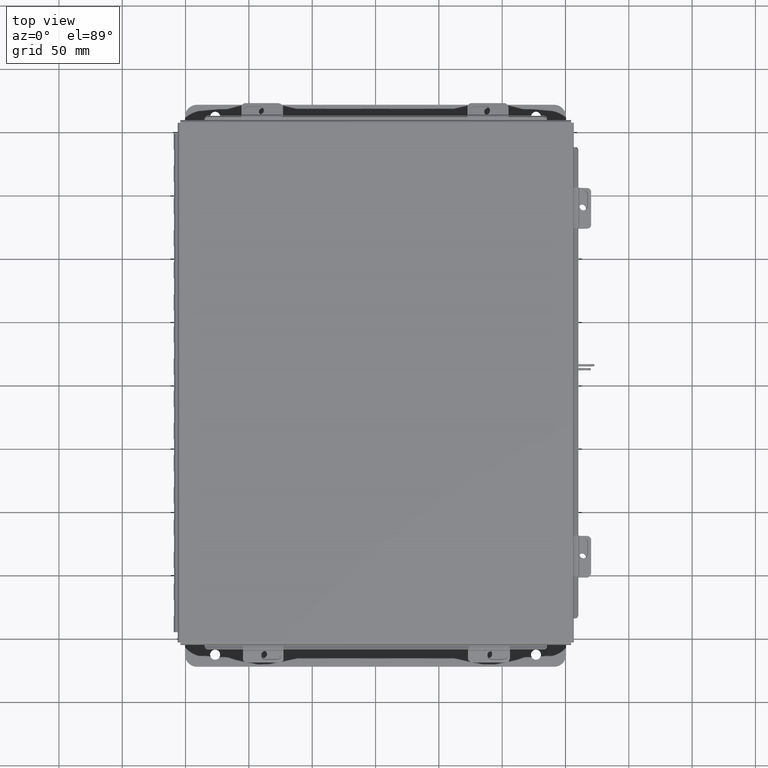
[diagram: clean part render]
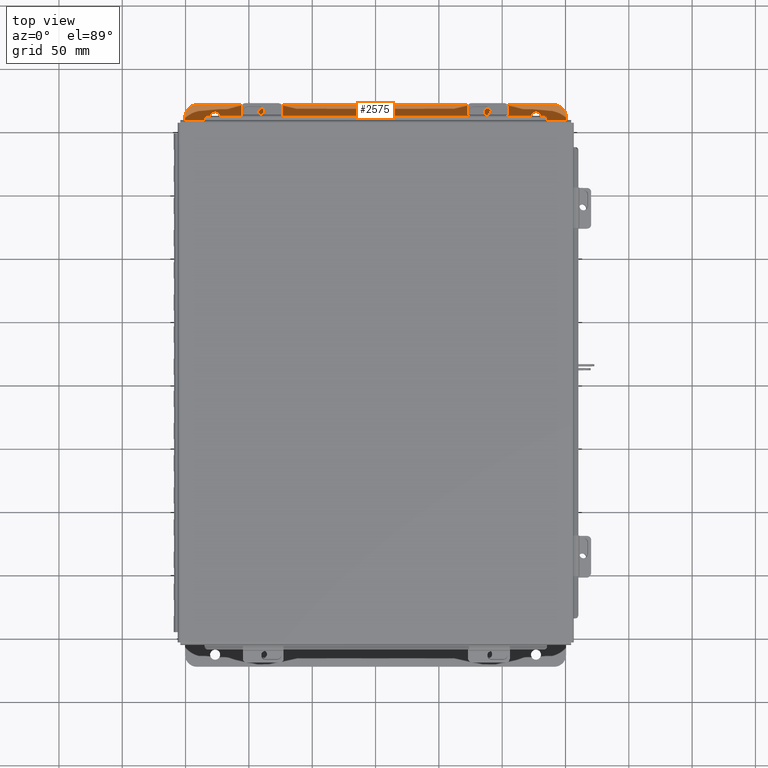
[diagram: same view with one face highlighted and labeled with its STEP entity id]
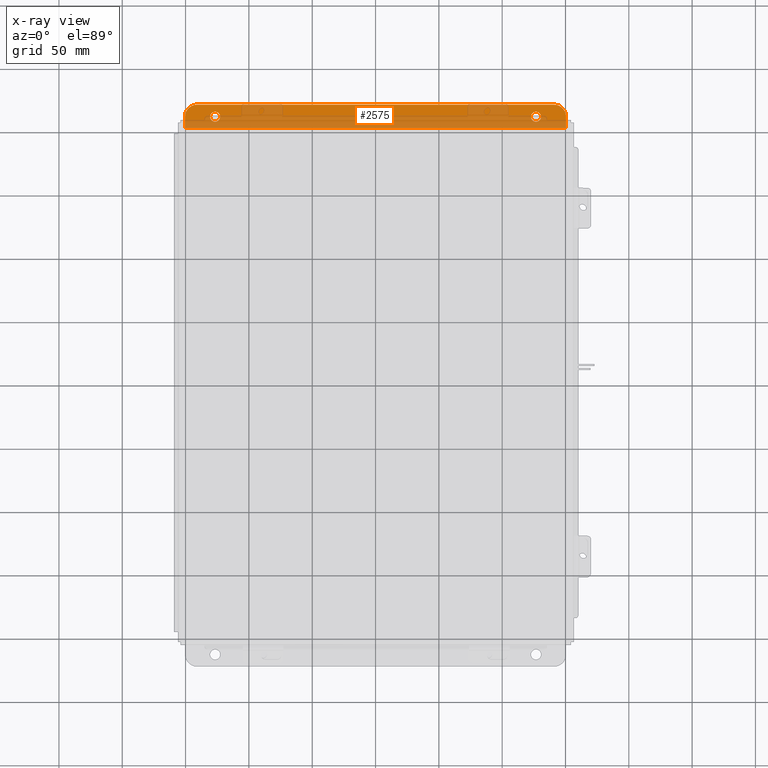
[diagram: x-ray of the same camera — body ghosted, the highlighted face saturated]
A machine part, top view. The second image highlights one B-rep face of the part: STEP entity #2575.
The next image is the same camera in x-ray: the body ghosted, the highlighted face saturated — about 61% of this face is hidden behind the body in this view.
In plain terms, the highlighted planar face has unit normal (0, 0, 1).
Its self-contained STEP definition (entity closure, byte-faithful):
#83 = EDGE_LOOP ( 'NONE', ( #6463, #13774, #12490, #6359, #7655, #18225 ) ) ;
#581 = DIRECTION ( 'NONE',  ( 0.0000000000000000000, -1.000000000000000000, 3.502369222646487400E-015 ) ) ;
#637 = DIRECTION ( 'NONE',  ( -0.0000000000000000000, -3.702694488566362300E-015, -1.000000000000000000 ) ) ;
#864 = VERTEX_POINT ( 'NONE', #15017 ) ;
#1129 = CARTESIAN_POINT ( 'NONE',  ( 5.925299999999999100, 0.7378000000000000100, -3.112300000000003000 ) ) ;
#1261 = EDGE_CURVE ( 'NONE', #17859, #13406, #6031, .T. ) ;
#1560 = LINE ( 'NONE', #1129, #13451 ) ;
#1876 = VECTOR ( 'NONE', #5502, 39.37007874015748100 ) ;
#2012 = VERTEX_POINT ( 'NONE', #5421 ) ;
#2099 = LINE ( 'NONE', #16116, #5740 ) ;
#2283 = CARTESIAN_POINT ( 'NONE',  ( -5.550299999999999100, 0.3628000000000008400, -3.112300000000001200 ) ) ;
#2575 = ADVANCED_FACE ( 'NONE', ( #17182, #4748, #17654 ), #7777, .T. ) ;
#2668 = ORIENTED_EDGE ( 'NONE', *, *, #1261, .T. ) ;
#2925 = DIRECTION ( 'NONE',  ( -0.0000000000000000000, 1.000000000000000000, -3.702694488566362300E-015 ) ) ;
#2977 = CARTESIAN_POINT ( 'NONE',  ( 5.550299999999999100, 0.3627999999999997300, -3.112300000000001200 ) ) ;
#3846 = DIRECTION ( 'NONE',  ( 0.0000000000000000000, -1.000000000000000000, 4.370956789862820400E-015 ) ) ;
#4143 = DIRECTION ( 'NONE',  ( 1.000000000000000000, -0.0000000000000000000, -0.0000000000000000000 ) ) ;
#4205 = CARTESIAN_POINT ( 'NONE',  ( -4.987800000000000900, 0.5187999999999999300, -3.112300000000001600 ) ) ;
#4230 = CARTESIAN_POINT ( 'NONE',  ( -4.987800000000000900, 0.3627999999999997300, -3.112300000000001200 ) ) ;
#4258 = CARTESIAN_POINT ( 'NONE',  ( 0.0000000000000000000, -1.092739197465705300E-014, -3.112299999999999800 ) ) ;
#4466 = CARTESIAN_POINT ( 'NONE',  ( -5.925300000000001800, 0.7378000000000000100, -3.112300000000003000 ) ) ;
#4499 = DIRECTION ( 'NONE',  ( 0.0000000000000000000, -1.000000000000000000, 3.502369222646487400E-015 ) ) ;
#4524 = DIRECTION ( 'NONE',  ( 0.0000000000000000000, -1.000000000000000000, 4.370956789862820400E-015 ) ) ;
#4713 = DIRECTION ( 'NONE',  ( 0.0000000000000000000, -1.000000000000000000, 3.702694488566362300E-015 ) ) ;
#4748 = FACE_BOUND ( 'NONE', #8571, .T. ) ;
#4749 = VERTEX_POINT ( 'NONE', #6108 ) ;
#4865 = AXIS2_PLACEMENT_3D ( 'NONE', #4230, #15138, #5809 ) ;
#5167 = EDGE_LOOP ( 'NONE', ( #11671, #15589 ) ) ;
#5189 = CARTESIAN_POINT ( 'NONE',  ( 4.987799999999998200, 0.3627999999999997300, -3.112300000000001200 ) ) ;
#5283 = DIRECTION ( 'NONE',  ( 0.0000000000000000000, 3.702694488566362300E-015, 1.000000000000000000 ) ) ;
#5421 = CARTESIAN_POINT ( 'NONE',  ( -5.550299999999999100, 0.7378000000000000100, -3.112300000000003000 ) ) ;
#5502 = DIRECTION ( 'NONE',  ( -0.0000000000000000000, -1.000000000000000000, 3.702694488566362300E-015 ) ) ;
#5594 = AXIS2_PLACEMENT_3D ( 'NONE', #9890, #637, #11447 ) ;
#5684 = AXIS2_PLACEMENT_3D ( 'NONE', #2283, #13153, #3846 ) ;
#5740 = VECTOR ( 'NONE', #8323, 39.37007874015748100 ) ;
#5809 = DIRECTION ( 'NONE',  ( 0.0000000000000000000, -1.000000000000000000, 3.502369222646487400E-015 ) ) ;
#5958 = CIRCLE ( 'NONE', #5684, 0.3750000000000000600 ) ;
#6000 = DIRECTION ( 'NONE',  ( -0.0000000000000000000, -3.702694488566362300E-015, -1.000000000000000000 ) ) ;
#6027 = VERTEX_POINT ( 'NONE', #17555 ) ;
#6031 = CIRCLE ( 'NONE', #9848, 0.1560000000000001700 ) ;
#6108 = CARTESIAN_POINT ( 'NONE',  ( -4.987800000000000900, 0.2067999999999996000, -3.112300000000000700 ) ) ;
#6359 = ORIENTED_EDGE ( 'NONE', *, *, #16883, .T. ) ;
#6463 = ORIENTED_EDGE ( 'NONE', *, *, #13844, .F. ) ;
#6468 = AXIS2_PLACEMENT_3D ( 'NONE', #19195, #9838, #581 ) ;
#7088 = EDGE_CURVE ( 'NONE', #4749, #9147, #19670, .T. ) ;
#7655 = ORIENTED_EDGE ( 'NONE', *, *, #19794, .F. ) ;
#7777 = PLANE ( 'NONE',  #16297 ) ;
#8323 = DIRECTION ( 'NONE',  ( -1.000000000000000000, 0.0000000000000000000, 0.0000000000000000000 ) ) ;
#8523 = CIRCLE ( 'NONE', #13959, 0.3750000000000000600 ) ;
#8571 = EDGE_LOOP ( 'NONE', ( #16399, #2668 ) ) ;
#9132 = EDGE_CURVE ( 'NONE', #2012, #11951, #1560, .T. ) ;
#9147 = VERTEX_POINT ( 'NONE', #4205 ) ;
#9838 = DIRECTION ( 'NONE',  ( -0.0000000000000000000, -3.702694488566362300E-015, -1.000000000000000000 ) ) ;
#9848 = AXIS2_PLACEMENT_3D ( 'NONE', #5189, #6000, #4499 ) ;
#9890 = CARTESIAN_POINT ( 'NONE',  ( 4.987799999999998200, 0.3627999999999997300, -3.112300000000001200 ) ) ;
#9894 = CIRCLE ( 'NONE', #4865, 0.1560000000000001700 ) ;
#10405 = EDGE_CURVE ( 'NONE', #18959, #11951, #8523, .T. ) ;
#11447 = DIRECTION ( 'NONE',  ( 0.0000000000000000000, -1.000000000000000000, 3.502369222646487400E-015 ) ) ;
#11671 = ORIENTED_EDGE ( 'NONE', *, *, #15178, .T. ) ;
#11951 = VERTEX_POINT ( 'NONE', #13058 ) ;
#12238 = CARTESIAN_POINT ( 'NONE',  ( 4.987799999999998200, 0.5187999999999999300, -3.112300000000001600 ) ) ;
#12490 = ORIENTED_EDGE ( 'NONE', *, *, #9132, .F. ) ;
#13058 = CARTESIAN_POINT ( 'NONE',  ( 5.550299999999999100, 0.7378000000000000100, -3.112300000000003000 ) ) ;
#13153 = DIRECTION ( 'NONE',  ( 0.0000000000000000000, 3.702694488566362300E-015, 1.000000000000000000 ) ) ;
#13224 = CARTESIAN_POINT ( 'NONE',  ( 5.925299999999999100, 0.3627999999999997300, -3.112300000000001200 ) ) ;
#13406 = VERTEX_POINT ( 'NONE', #12238 ) ;
#13451 = VECTOR ( 'NONE', #4143, 39.37007874015748100 ) ;
#13774 = ORIENTED_EDGE ( 'NONE', *, *, #10405, .T. ) ;
#13844 = EDGE_CURVE ( 'NONE', #18959, #864, #14788, .T. ) ;
#13849 = DIRECTION ( 'NONE',  ( 0.0000000000000000000, 3.702694488566362300E-015, 1.000000000000000000 ) ) ;
#13921 = CARTESIAN_POINT ( 'NONE',  ( 4.987799999999998200, 0.2067999999999996000, -3.112300000000000700 ) ) ;
#13959 = AXIS2_PLACEMENT_3D ( 'NONE', #2977, #13849, #4524 ) ;
#14122 = CIRCLE ( 'NONE', #5594, 0.1560000000000001700 ) ;
#14788 = LINE ( 'NONE', #19556, #1876 ) ;
#15017 = CARTESIAN_POINT ( 'NONE',  ( 5.925299999999999100, 0.01300000000000010700, -3.112299999999999800 ) ) ;
#15138 = DIRECTION ( 'NONE',  ( -0.0000000000000000000, -3.702694488566362300E-015, -1.000000000000000000 ) ) ;
#15178 = EDGE_CURVE ( 'NONE', #9147, #4749, #9894, .T. ) ;
#15589 = ORIENTED_EDGE ( 'NONE', *, *, #7088, .T. ) ;
#16116 = CARTESIAN_POINT ( 'NONE',  ( 5.925299999999999100, 0.01300000000000010700, -3.112299999999999800 ) ) ;
#16150 = EDGE_CURVE ( 'NONE', #864, #18000, #2099, .T. ) ;
#16297 = AXIS2_PLACEMENT_3D ( 'NONE', #4258, #5283, #4713 ) ;
#16399 = ORIENTED_EDGE ( 'NONE', *, *, #20120, .T. ) ;
#16883 = EDGE_CURVE ( 'NONE', #2012, #6027, #5958, .T. ) ;
#17182 = FACE_BOUND ( 'NONE', #5167, .T. ) ;
#17555 = CARTESIAN_POINT ( 'NONE',  ( -5.925300000000001800, 0.3628000000000008400, -3.112300000000001200 ) ) ;
#17654 = FACE_OUTER_BOUND ( 'NONE', #83, .T. ) ;
#17859 = VERTEX_POINT ( 'NONE', #13921 ) ;
#18000 = VERTEX_POINT ( 'NONE', #18903 ) ;
#18225 = ORIENTED_EDGE ( 'NONE', *, *, #16150, .F. ) ;
#18749 = VECTOR ( 'NONE', #2925, 39.37007874015748100 ) ;
#18903 = CARTESIAN_POINT ( 'NONE',  ( -5.925300000000000000, 0.01300000000000010700, -3.112299999999999800 ) ) ;
#18959 = VERTEX_POINT ( 'NONE', #13224 ) ;
#19195 = CARTESIAN_POINT ( 'NONE',  ( -4.987800000000000900, 0.3627999999999997300, -3.112300000000001200 ) ) ;
#19255 = LINE ( 'NONE', #4466, #18749 ) ;
#19556 = CARTESIAN_POINT ( 'NONE',  ( 5.925299999999999100, 0.0000000000000000000, -3.112299999999999800 ) ) ;
#19670 = CIRCLE ( 'NONE', #6468, 0.1560000000000001700 ) ;
#19794 = EDGE_CURVE ( 'NONE', #18000, #6027, #19255, .T. ) ;
#20120 = EDGE_CURVE ( 'NONE', #13406, #17859, #14122, .T. ) ;